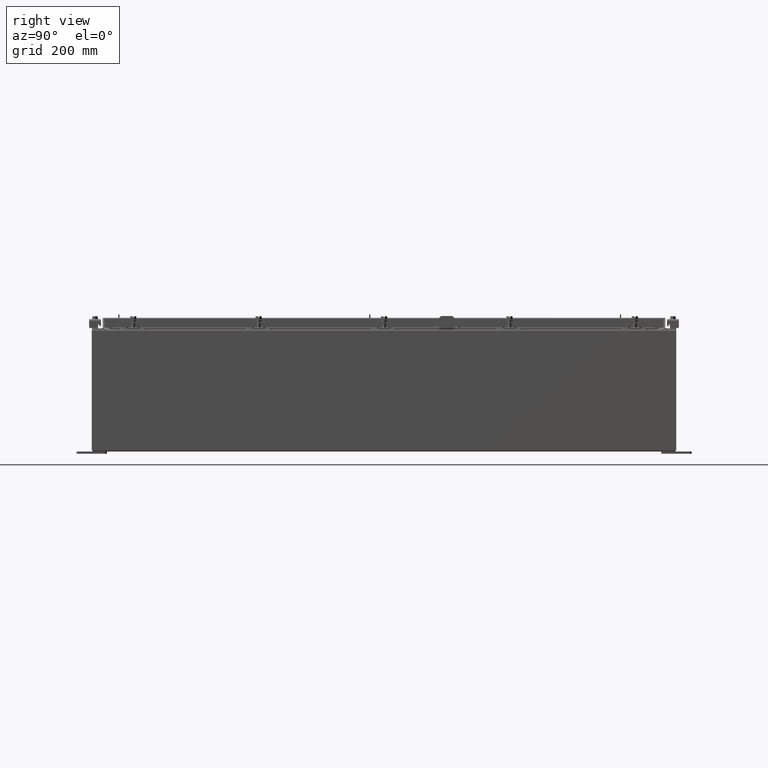
[diagram: clean part render]
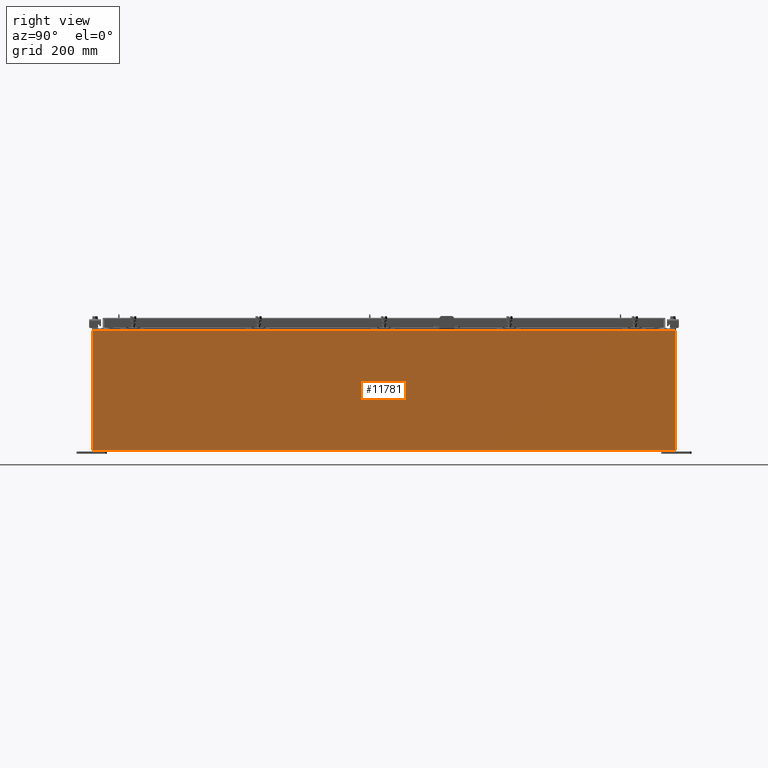
[diagram: same view with one face highlighted and labeled with its STEP entity id]
A machine part, right view. The second image highlights one B-rep face of the part: STEP entity #11781.
In plain terms, the highlighted planar face has unit normal (-1, 0, 0).
Its self-contained STEP definition (entity closure, byte-faithful):
#241 = DIRECTION ( 'NONE',  ( -0.0000000000000000000, -1.000000000000000000, -0.0000000000000000000 ) ) ;
#273 = CARTESIAN_POINT ( 'NONE',  ( 15.00000000000003400, 23.92529999999999600, 9.837599999999994800 ) ) ;
#299 = EDGE_CURVE ( 'NONE', #679, #22139, #21866, .T. ) ;
#679 = VERTEX_POINT ( 'NONE', #14543 ) ;
#844 = ORIENTED_EDGE ( 'NONE', *, *, #10630, .F. ) ;
#1650 = VECTOR ( 'NONE', #21346, 39.37007874015748100 ) ;
#2033 = ORIENTED_EDGE ( 'NONE', *, *, #299, .T. ) ;
#2727 = ORIENTED_EDGE ( 'NONE', *, *, #4927, .T. ) ;
#4528 = LINE ( 'NONE', #19499, #14651 ) ;
#4550 = CARTESIAN_POINT ( 'NONE',  ( 14.99999999999999800, 0.0000000000000000000, -5.310705656892488900E-014 ) ) ;
#4704 = LINE ( 'NONE', #273, #14820 ) ;
#4723 = VECTOR ( 'NONE', #10057, 39.37007874015748100 ) ;
#4835 = VERTEX_POINT ( 'NONE', #14110 ) ;
#4927 = EDGE_CURVE ( 'NONE', #7518, #4835, #14838, .T. ) ;
#5363 = EDGE_CURVE ( 'NONE', #4835, #679, #4704, .T. ) ;
#6441 = DIRECTION ( 'NONE',  ( 3.523082860860887800E-015, 0.0000000000000000000, 1.000000000000000000 ) ) ;
#7518 = VERTEX_POINT ( 'NONE', #8322 ) ;
#7612 = ORIENTED_EDGE ( 'NONE', *, *, #5363, .T. ) ;
#8322 = CARTESIAN_POINT ( 'NONE',  ( 14.99999999999999800, 23.92529999999998900, 0.01299999999999766100 ) ) ;
#9740 = CARTESIAN_POINT ( 'NONE',  ( 14.99999999999999800, 23.92529999999999600, -5.310705656892488900E-014 ) ) ;
#10057 = DIRECTION ( 'NONE',  ( 3.523082860860888200E-015, 0.0000000000000000000, 1.000000000000000000 ) ) ;
#10630 = EDGE_CURVE ( 'NONE', #7518, #22139, #4528, .T. ) ;
#11590 = FACE_OUTER_BOUND ( 'NONE', #23593, .T. ) ;
#11594 = AXIS2_PLACEMENT_3D ( 'NONE', #4550, #17869, #6441 ) ;
#11781 = ADVANCED_FACE ( 'NONE', ( #11590 ), #21627, .F. ) ;
#14110 = CARTESIAN_POINT ( 'NONE',  ( 15.00000000000003400, 23.92529999999998600, 9.837599999999994800 ) ) ;
#14543 = CARTESIAN_POINT ( 'NONE',  ( 15.00000000000003400, -23.92529999999998600, 9.837600000000001900 ) ) ;
#14651 = VECTOR ( 'NONE', #21243, 39.37007874015748100 ) ;
#14820 = VECTOR ( 'NONE', #241, 39.37007874015748100 ) ;
#14838 = LINE ( 'NONE', #9740, #4723 ) ;
#17869 = DIRECTION ( 'NONE',  ( -1.000000000000000000, 0.0000000000000000000, 3.523082860860887800E-015 ) ) ;
#19499 = CARTESIAN_POINT ( 'NONE',  ( 14.99999999999999800, -23.92529999999998600, 0.01299999999999984700 ) ) ;
#20663 = CARTESIAN_POINT ( 'NONE',  ( 14.99999999999999800, -23.92529999999998600, -5.310705656892488900E-014 ) ) ;
#21243 = DIRECTION ( 'NONE',  ( 1.609096119163526300E-031, -1.000000000000000000, 4.567295697298285000E-017 ) ) ;
#21346 = DIRECTION ( 'NONE',  ( -3.523082860860888200E-015, 0.0000000000000000000, -1.000000000000000000 ) ) ;
#21627 = PLANE ( 'NONE',  #11594 ) ;
#21784 = CARTESIAN_POINT ( 'NONE',  ( 14.99999999999999800, -23.92529999999998200, 0.01300000000000071400 ) ) ;
#21866 = LINE ( 'NONE', #20663, #1650 ) ;
#22139 = VERTEX_POINT ( 'NONE', #21784 ) ;
#23593 = EDGE_LOOP ( 'NONE', ( #7612, #2033, #844, #2727 ) ) ;